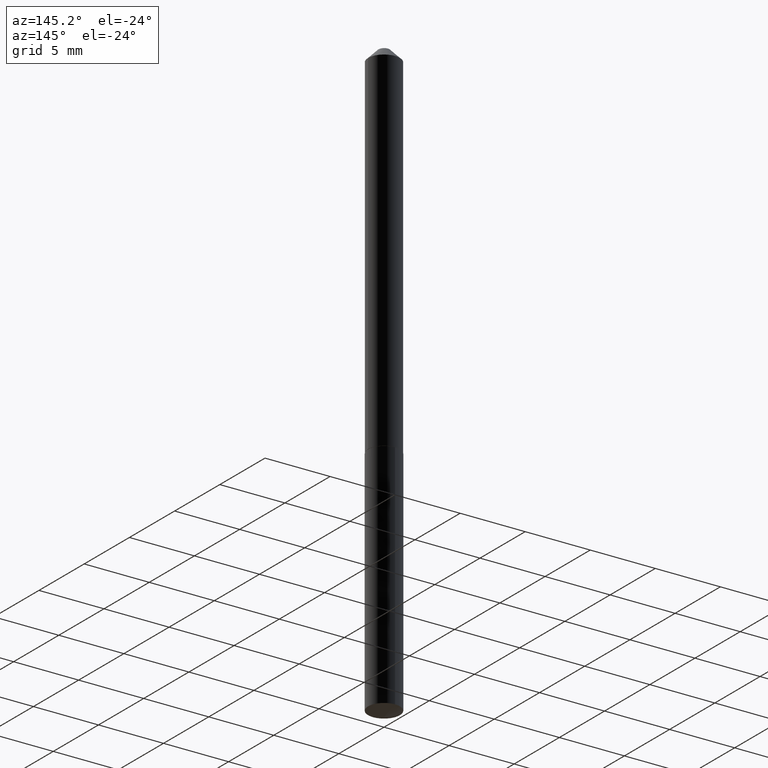
[diagram: clean part render]
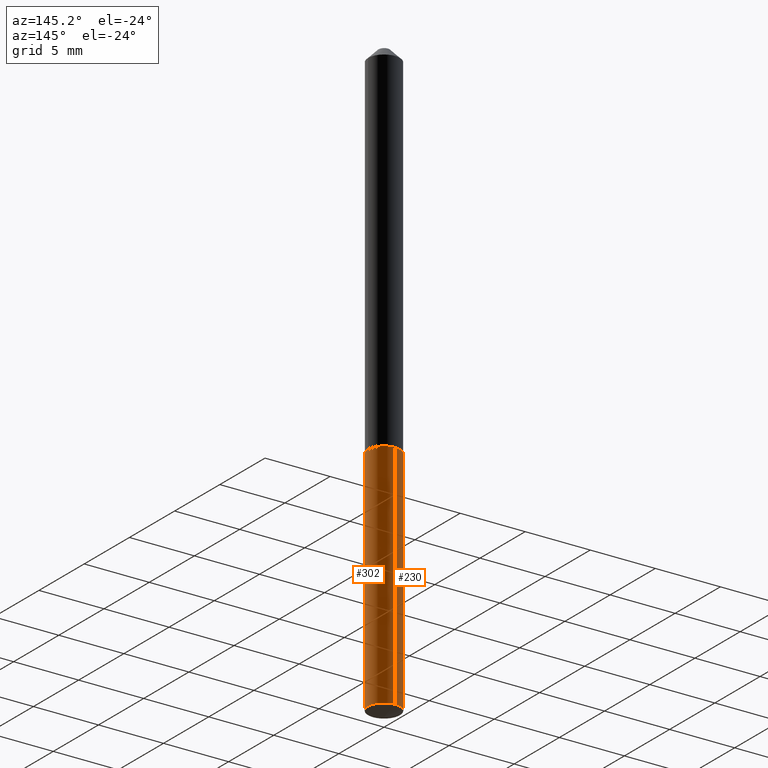
[diagram: same view with one multi-face feature highlighted, each face labeled with its STEP entity id]
A machine part, auxiliary view. The highlighted faces form ONE feature: a constant-radius fillet chain: 2 tangent blend faces with common blend radius 1.2192 mm. The faces share edges in the B-rep.
Their STEP definitions:
[1] entity #230 (Cylinder):
#45 = EDGE_CURVE ( 'NONE', #52, #311, #58, .T. ) ;
#49 = DIRECTION ( 'NONE',  ( -6.982962677686265922E-15, -1.000000000000000000, 2.845674993400273939E-15 ) ) ;
#51 = EDGE_CURVE ( 'NONE', #52, #231, #110, .T. ) ;
#52 = VERTEX_POINT ( 'NONE', #325 ) ;
#58 = LINE ( 'NONE', #180, #247 ) ;
#69 = CARTESIAN_POINT ( 'NONE',  ( -3.351822085289139434E-16, -0.04800000000000382433, -1.096000000000000085 ) ) ;
#76 = CARTESIAN_POINT ( 'NONE',  ( -3.351822085288967856E-16, -0.04800000000000624600, -1.795029428755222201 ) ) ;
#83 = EDGE_LOOP ( 'NONE', ( #348, #260, #286, #298 ) ) ;
#90 = EDGE_CURVE ( 'NONE', #231, #158, #274, .T. ) ;
#92 = CARTESIAN_POINT ( 'NONE',  ( 4.389687988186070502E-29, -6.267312449180217349E-15, -1.795029428755222423 ) ) ;
#100 = DIRECTION ( 'NONE',  ( -2.445468110908041057E-29, 3.491482334519519082E-15, 1.000000000000000000 ) ) ;
#110 = CIRCLE ( 'NONE', #153, 0.04800000000000000100 ) ;
#113 = FACE_OUTER_BOUND ( 'NONE', #83, .T. ) ;
#153 = AXIS2_PLACEMENT_3D ( 'NONE', #92, #295, #155 ) ;
#155 = DIRECTION ( 'NONE',  ( -6.982962677686265922E-15, -1.000000000000000000, 5.691349986800547879E-15 ) ) ;
#158 = VERTEX_POINT ( 'NONE', #69 ) ;
#180 = CARTESIAN_POINT ( 'NONE',  ( 3.410605131648748190E-16, 0.04799999999999617073, -1.096000000000000307 ) ) ;
#184 = DIRECTION ( 'NONE',  ( -2.445468110908041057E-29, 3.491482334519519082E-15, 1.000000000000000000 ) ) ;
#210 = VECTOR ( 'NONE', #100, 39.37007874015748143 ) ;
#213 = EDGE_CURVE ( 'NONE', #311, #158, #304, .T. ) ;
#222 = AXIS2_PLACEMENT_3D ( 'NONE', #226, #312, #49 ) ;
#226 = CARTESIAN_POINT ( 'NONE',  ( 2.680233811578910199E-29, -3.826663547372088073E-15, -1.096000000000000085 ) ) ;
#230 = ADVANCED_FACE ( 'NONE', ( #113 ), #371, .T. ) ;
#231 = VERTEX_POINT ( 'NONE', #76 ) ;
#243 = CARTESIAN_POINT ( 'NONE',  ( -3.351822085289139434E-16, -0.04800000000000382433, -1.096000000000000085 ) ) ;
#247 = VECTOR ( 'NONE', #184, 39.37007874015748143 ) ;
#260 = ORIENTED_EDGE ( 'NONE', *, *, #51, .T. ) ;
#262 = CARTESIAN_POINT ( 'NONE',  ( 2.680233811578910199E-29, -3.826663547372088073E-15, -1.096000000000000085 ) ) ;
#274 = LINE ( 'NONE', #243, #210 ) ;
#283 = DIRECTION ( 'NONE',  ( -2.445468110908041057E-29, 3.491482334519519082E-15, 1.000000000000000000 ) ) ;
#286 = ORIENTED_EDGE ( 'NONE', *, *, #90, .T. ) ;
#295 = DIRECTION ( 'NONE',  ( -2.445468110908041057E-29, 3.491482334519519082E-15, 1.000000000000000000 ) ) ;
#298 = ORIENTED_EDGE ( 'NONE', *, *, #213, .F. ) ;
#304 = CIRCLE ( 'NONE', #222, 0.04800000000000000100 ) ;
#311 = VERTEX_POINT ( 'NONE', #347 ) ;
#312 = DIRECTION ( 'NONE',  ( -2.445468110908041057E-29, 3.491482334519519082E-15, 1.000000000000000000 ) ) ;
#325 = CARTESIAN_POINT ( 'NONE',  ( 3.410605131648918288E-16, 0.04799999999999372130, -1.795029428755222645 ) ) ;
#332 = DIRECTION ( 'NONE',  ( -6.982962677686265922E-15, -1.000000000000000000, 2.845674993400273939E-15 ) ) ;
#347 = CARTESIAN_POINT ( 'NONE',  ( 3.410605131648921246E-16, 0.04799999999999618461, -1.096000000000000307 ) ) ;
#348 = ORIENTED_EDGE ( 'NONE', *, *, #45, .F. ) ;
#356 = AXIS2_PLACEMENT_3D ( 'NONE', #262, #283, #332 ) ;
#371 = CYLINDRICAL_SURFACE ( 'NONE', #356, 0.04800000000000000100 ) ;
[2] entity #302 (Cylinder):
#2 = CIRCLE ( 'NONE', #217, 0.04800000000000000100 ) ;
#9 = CARTESIAN_POINT ( 'NONE',  ( 4.389687988186070502E-29, -6.267312449180217349E-15, -1.795029428755222423 ) ) ;
#11 = CARTESIAN_POINT ( 'NONE',  ( 2.680233811578910199E-29, -3.826663547372088073E-15, -1.096000000000000085 ) ) ;
#17 = CYLINDRICAL_SURFACE ( 'NONE', #48, 0.04800000000000000100 ) ;
#19 = ORIENTED_EDGE ( 'NONE', *, *, #179, .T. ) ;
#29 = EDGE_LOOP ( 'NONE', ( #19, #89, #384, #344 ) ) ;
#45 = EDGE_CURVE ( 'NONE', #52, #311, #58, .T. ) ;
#48 = AXIS2_PLACEMENT_3D ( 'NONE', #146, #156, #300 ) ;
#52 = VERTEX_POINT ( 'NONE', #325 ) ;
#58 = LINE ( 'NONE', #180, #247 ) ;
#69 = CARTESIAN_POINT ( 'NONE',  ( -3.351822085289139434E-16, -0.04800000000000382433, -1.096000000000000085 ) ) ;
#76 = CARTESIAN_POINT ( 'NONE',  ( -3.351822085288967856E-16, -0.04800000000000624600, -1.795029428755222201 ) ) ;
#89 = ORIENTED_EDGE ( 'NONE', *, *, #45, .T. ) ;
#90 = EDGE_CURVE ( 'NONE', #231, #158, #274, .T. ) ;
#100 = DIRECTION ( 'NONE',  ( -2.445468110908041057E-29, 3.491482334519519082E-15, 1.000000000000000000 ) ) ;
#128 = CIRCLE ( 'NONE', #201, 0.04800000000000000100 ) ;
#146 = CARTESIAN_POINT ( 'NONE',  ( 2.680233811578910199E-29, -3.826663547372088073E-15, -1.096000000000000085 ) ) ;
#156 = DIRECTION ( 'NONE',  ( -2.445468110908041057E-29, 3.491482334519519082E-15, 1.000000000000000000 ) ) ;
#158 = VERTEX_POINT ( 'NONE', #69 ) ;
#179 = EDGE_CURVE ( 'NONE', #231, #52, #128, .T. ) ;
#180 = CARTESIAN_POINT ( 'NONE',  ( 3.410605131648748190E-16, 0.04799999999999617073, -1.096000000000000307 ) ) ;
#184 = DIRECTION ( 'NONE',  ( -2.445468110908041057E-29, 3.491482334519519082E-15, 1.000000000000000000 ) ) ;
#201 = AXIS2_PLACEMENT_3D ( 'NONE', #9, #338, #375 ) ;
#210 = VECTOR ( 'NONE', #100, 39.37007874015748143 ) ;
#217 = AXIS2_PLACEMENT_3D ( 'NONE', #11, #368, #377 ) ;
#231 = VERTEX_POINT ( 'NONE', #76 ) ;
#240 = EDGE_CURVE ( 'NONE', #158, #311, #2, .T. ) ;
#243 = CARTESIAN_POINT ( 'NONE',  ( -3.351822085289139434E-16, -0.04800000000000382433, -1.096000000000000085 ) ) ;
#247 = VECTOR ( 'NONE', #184, 39.37007874015748143 ) ;
#274 = LINE ( 'NONE', #243, #210 ) ;
#300 = DIRECTION ( 'NONE',  ( -6.982962677686265922E-15, -1.000000000000000000, 2.845674993400273939E-15 ) ) ;
#302 = ADVANCED_FACE ( 'NONE', ( #345 ), #17, .T. ) ;
#311 = VERTEX_POINT ( 'NONE', #347 ) ;
#325 = CARTESIAN_POINT ( 'NONE',  ( 3.410605131648918288E-16, 0.04799999999999372130, -1.795029428755222645 ) ) ;
#338 = DIRECTION ( 'NONE',  ( -2.445468110908041057E-29, 3.491482334519519082E-15, 1.000000000000000000 ) ) ;
#344 = ORIENTED_EDGE ( 'NONE', *, *, #90, .F. ) ;
#345 = FACE_OUTER_BOUND ( 'NONE', #29, .T. ) ;
#347 = CARTESIAN_POINT ( 'NONE',  ( 3.410605131648921246E-16, 0.04799999999999618461, -1.096000000000000307 ) ) ;
#368 = DIRECTION ( 'NONE',  ( -2.445468110908041057E-29, 3.491482334519519082E-15, 1.000000000000000000 ) ) ;
#375 = DIRECTION ( 'NONE',  ( -6.982962677686265922E-15, -1.000000000000000000, 5.691349986800547879E-15 ) ) ;
#377 = DIRECTION ( 'NONE',  ( -6.982962677686265922E-15, -1.000000000000000000, 2.845674993400273939E-15 ) ) ;
#384 = ORIENTED_EDGE ( 'NONE', *, *, #240, .F. ) ;